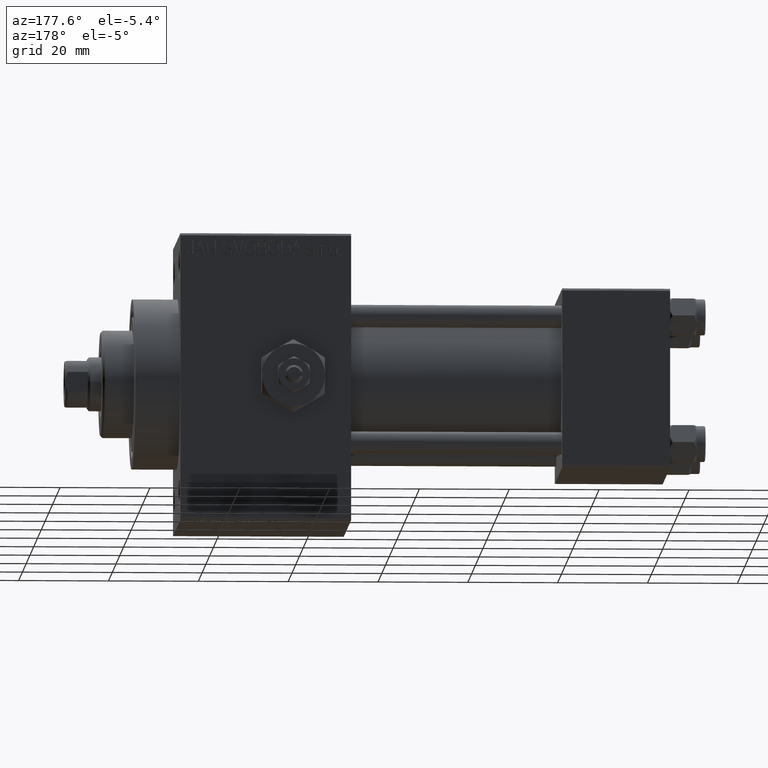
[diagram: clean part render]
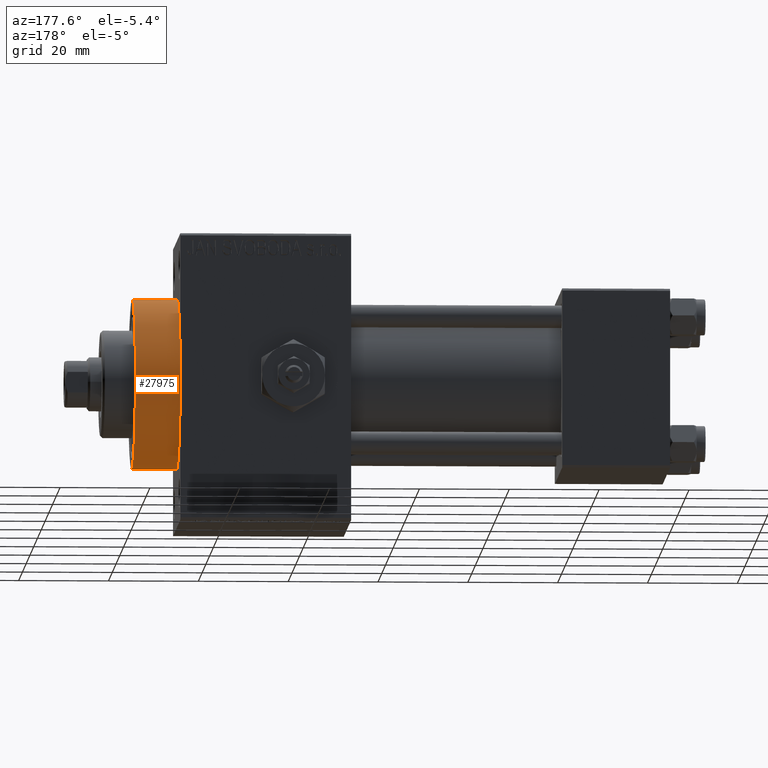
[diagram: same view with one face highlighted and labeled with its STEP entity id]
A machine part, auxiliary view. The second image highlights one B-rep face of the part: STEP entity #27975.
In plain terms, the highlighted cylindrical surface (partial cylindrical patch) has radius 19 mm, axis along (-1, -0, -0).
Its self-contained STEP definition (entity closure, byte-faithful):
#1567 = AXIS2_PLACEMENT_3D ( 'NONE', #3922, #11346, #22986 ) ;
#3663 = VERTEX_POINT ( 'NONE', #16564 ) ;
#3922 = CARTESIAN_POINT ( 'NONE',  ( 109.0000000000000142, 0.000000000000000000, 0.000000000000000000 ) ) ;
#3991 = CIRCLE ( 'NONE', #26148, 19.00000000000000000 ) ;
#4980 = ORIENTED_EDGE ( 'NONE', *, *, #40350, .T. ) ;
#5711 = CARTESIAN_POINT ( 'NONE',  ( 109.0000000000000142, 0.000000000000000000, 19.00000000000000000 ) ) ;
#9910 = CARTESIAN_POINT ( 'NONE',  ( 119.0000000000000142, 2.326828918379970970E-15, -19.00000000000000000 ) ) ;
#10208 = DIRECTION ( 'NONE',  ( 0.000000000000000000, 0.000000000000000000, 1.000000000000000000 ) ) ;
#10809 = LINE ( 'NONE', #18961, #41044 ) ;
#11049 = CIRCLE ( 'NONE', #1567, 19.00000000000000000 ) ;
#11346 = DIRECTION ( 'NONE',  ( 1.000000000000000000, 0.000000000000000000, 0.000000000000000000 ) ) ;
#14283 = EDGE_CURVE ( 'NONE', #3663, #46365, #10809, .T. ) ;
#16564 = CARTESIAN_POINT ( 'NONE',  ( 119.0000000000000142, 0.000000000000000000, 19.00000000000000000 ) ) ;
#16744 = ORIENTED_EDGE ( 'NONE', *, *, #21294, .F. ) ;
#18961 = CARTESIAN_POINT ( 'NONE',  ( 119.0000000000000142, 0.000000000000000000, 19.00000000000000000 ) ) ;
#21294 = EDGE_CURVE ( 'NONE', #27771, #3663, #3991, .T. ) ;
#21769 = ORIENTED_EDGE ( 'NONE', *, *, #14283, .F. ) ;
#22986 = DIRECTION ( 'NONE',  ( 0.000000000000000000, 0.000000000000000000, -1.000000000000000000 ) ) ;
#23432 = VERTEX_POINT ( 'NONE', #46275 ) ;
#25314 = FACE_OUTER_BOUND ( 'NONE', #42067, .T. ) ;
#25493 = DIRECTION ( 'NONE',  ( 0.000000000000000000, 0.000000000000000000, -1.000000000000000000 ) ) ;
#25789 = CARTESIAN_POINT ( 'NONE',  ( 119.0000000000000142, 0.000000000000000000, 0.000000000000000000 ) ) ;
#26148 = AXIS2_PLACEMENT_3D ( 'NONE', #32679, #47791, #25493 ) ;
#27771 = VERTEX_POINT ( 'NONE', #39551 ) ;
#27975 = ADVANCED_FACE ( 'NONE', ( #25314 ), #48343, .T. ) ;
#28408 = EDGE_CURVE ( 'NONE', #23432, #46365, #11049, .T. ) ;
#30121 = LINE ( 'NONE', #9910, #36683 ) ;
#32679 = CARTESIAN_POINT ( 'NONE',  ( 119.0000000000000142, 0.000000000000000000, 0.000000000000000000 ) ) ;
#36405 = DIRECTION ( 'NONE',  ( -1.000000000000000000, -0.000000000000000000, -0.000000000000000000 ) ) ;
#36683 = VECTOR ( 'NONE', #36405, 1000.000000000000000 ) ;
#39551 = CARTESIAN_POINT ( 'NONE',  ( 119.0000000000000142, 2.326828918379970970E-15, -19.00000000000000000 ) ) ;
#40350 = EDGE_CURVE ( 'NONE', #27771, #23432, #30121, .T. ) ;
#41018 = DIRECTION ( 'NONE',  ( -1.000000000000000000, -0.000000000000000000, -0.000000000000000000 ) ) ;
#41044 = VECTOR ( 'NONE', #41018, 1000.000000000000000 ) ;
#42067 = EDGE_LOOP ( 'NONE', ( #16744, #4980, #46059, #21769 ) ) ;
#43897 = DIRECTION ( 'NONE',  ( -1.000000000000000000, -0.000000000000000000, -0.000000000000000000 ) ) ;
#45850 = AXIS2_PLACEMENT_3D ( 'NONE', #25789, #43897, #10208 ) ;
#46059 = ORIENTED_EDGE ( 'NONE', *, *, #28408, .T. ) ;
#46275 = CARTESIAN_POINT ( 'NONE',  ( 109.0000000000000142, 2.326828918379970970E-15, -19.00000000000000000 ) ) ;
#46365 = VERTEX_POINT ( 'NONE', #5711 ) ;
#47791 = DIRECTION ( 'NONE',  ( 1.000000000000000000, 0.000000000000000000, 0.000000000000000000 ) ) ;
#48343 = CYLINDRICAL_SURFACE ( 'NONE', #45850, 19.00000000000000000 ) ;